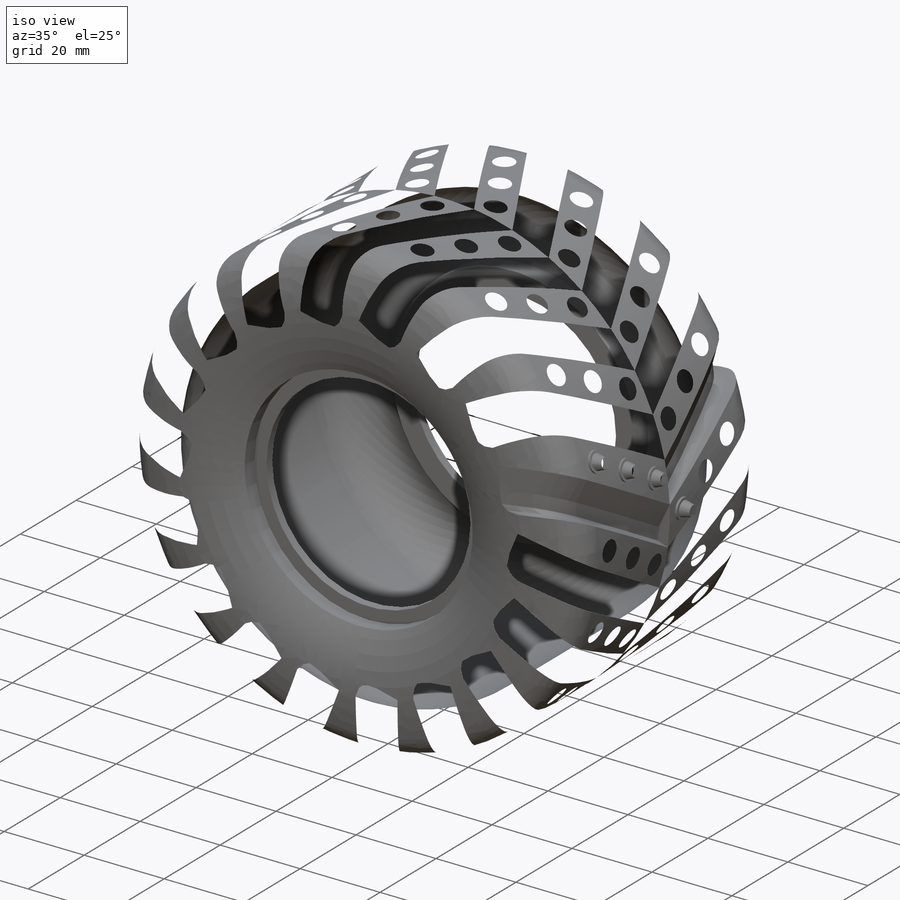
[diagram: iso view]
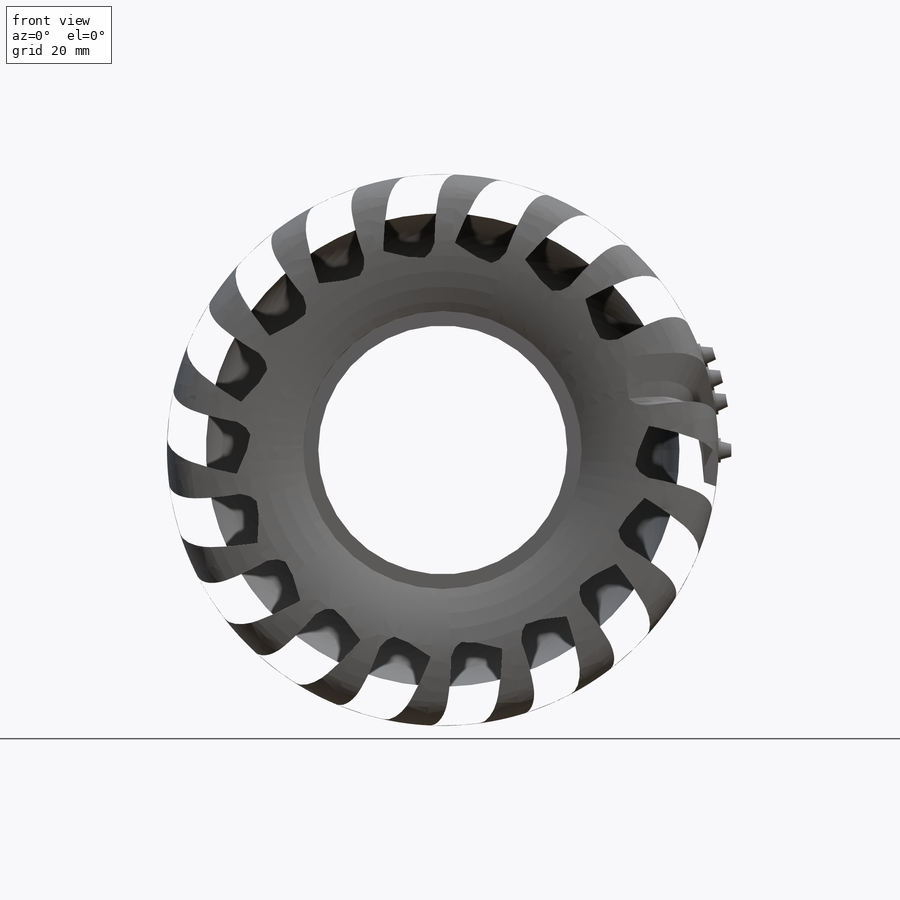
[diagram: front view]
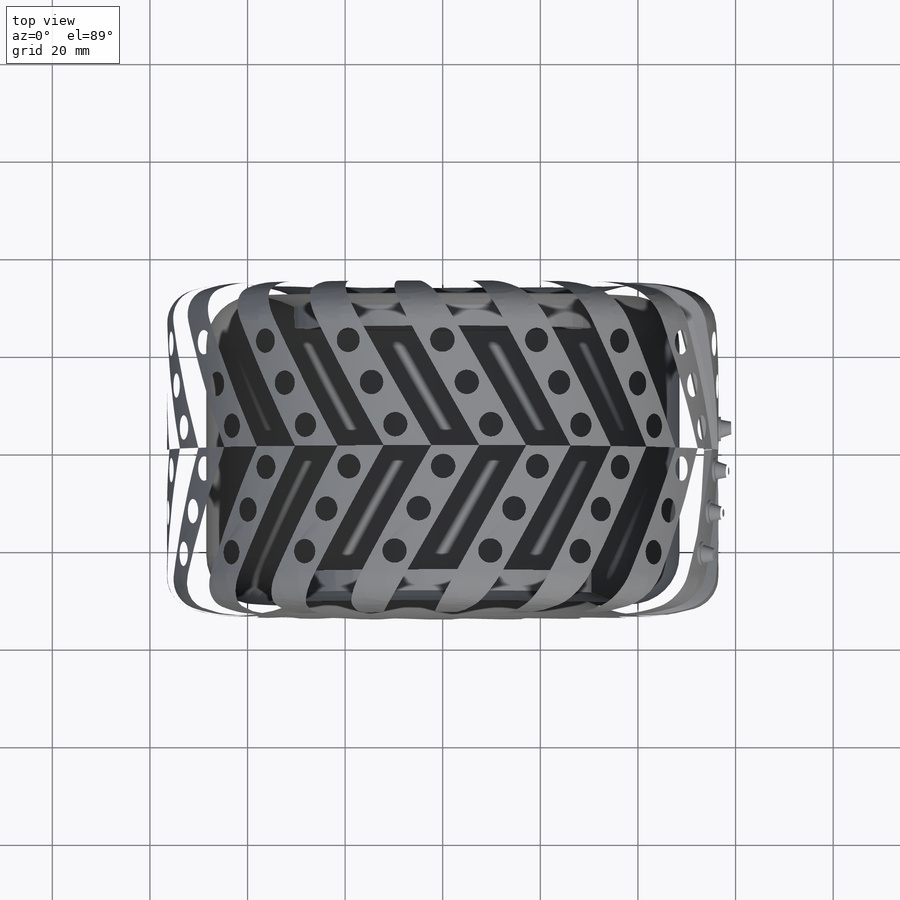
[diagram: top view]
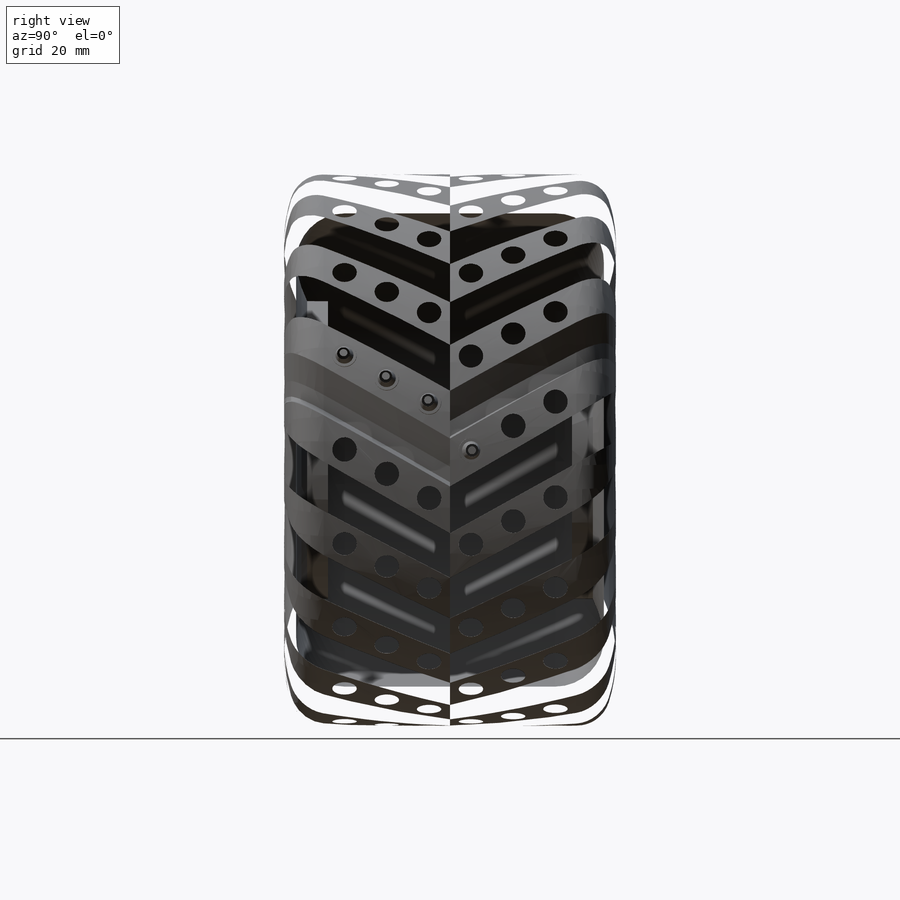
[diagram: right view]
SOLIDWORKS PART (.sldprt)
format: sldprt  version: not decoded by parser v0  size: 6,663,680 bytes
history: native  units: mm
features: sketch x12, extrude x4, fillet x3, pattern_circular x3, sweep x2, material x1, revolve x1, plane x1 (+13 scaffold rows collapsed)
feature tree (40):
  scaffold x13  (default folders/planes/origin — collapsed)
  material  "Malzeme <belirli değil>"
  sketch  "Sketch1"  dims[c1.D5=~31.022842mm c1.D2=113.0mm c1.D3=8.0mm c1.D4=12.0mm c2.D5=67.0mm c2.D6=51.0mm c2.D7=3.0mm c2.D8=2.5mm c2.D4=0.5mm c3.D5=68.0mm c3.D4=51.0mm c3.D6=57.0mm c3.D7=3.5mm c3.D8=54.0mm c4.D7=3.5mm c4.D1=2.0mm]
  revolve  "Revolve1"  Angle=360deg
  fillet  "Fillet1"  Radius=10mm
  fillet  "Fillet2"  Radius=7mm
  sketch  "Sketch2"
  sketch  "Sketch3"  dims[c1.D1=~43.884197mm c2.D1=60.0deg]
  pattern_circular  "CirPattern1"  Count=3 Angle=10deg
  plane  "Plane1"
  sketch  "Sketch4"  dims[c1.D1=4.0mm c1.D4=5.0mm c1.D2=10.0mm c1.D3=10.0mm c2.D3=60.0deg]
  sketch  "3DSketch1"
  sketch  "3DSketch2"
  sketch  "Sketch5"  dims[c1.D1=5.0mm c1.D2=2.5mm c1.D3=~3.198312mm c2.D3=23.0deg c2.D4=~3.409494mm c3.D4=73.0deg]
  pattern_circular  "CirPattern10"  Count=2 Angle=10deg
  sketch  "Sketch7"  dims[c1.D1=5.0mm c1.D2=~3.643009mm c2.D2=23.0deg c2.D3=2.5mm c2.D4=~2.633801mm c3.D4=73.0deg]
  sweep  "Cut-Sweep1"
  sweep  "Cut-Sweep2"
  sketch  "3DSketch3"
  sketch  "3DSketch4"
  sketch  "3DSketch5"
  sketch  "3DSketch6"
  extrude  "Boss-Extrude1"  Depth=3mm
  extrude  "Boss-Extrude3"  Depth=0.5mm
  extrude  "Boss-Extrude2"  Depth=3mm
  extrude  "Boss-Extrude4"  Depth=0.5mm
  fillet  "Fillet3"  Radius=0.5mm
  pattern_circular  "CirPattern11"  Count=18 Angle=360deg
decode coverage: 16 of 25 modeling features carry decoded parameters
note: ~ marks probable driven/reference dimensions
note: suppression state not decoded; provenance and decode notes live in map.json
